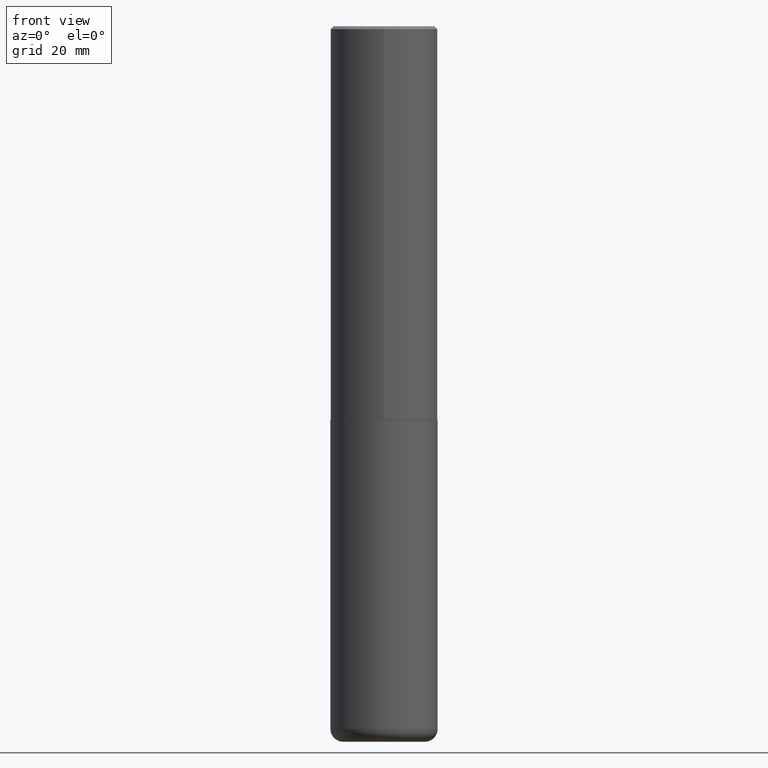
[diagram: clean part render]
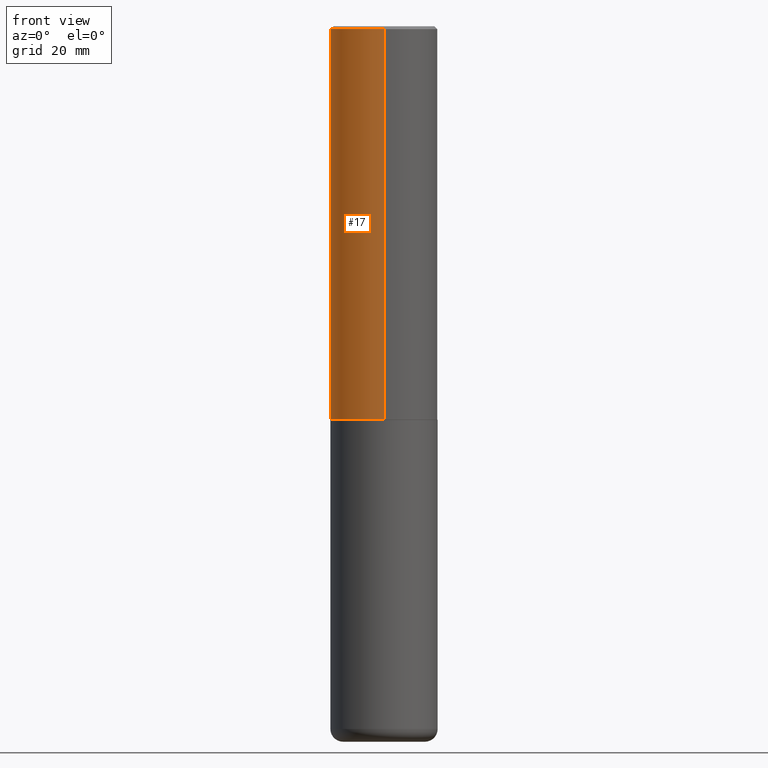
[diagram: same view with one face highlighted and labeled with its STEP entity id]
A machine part, front view. The second image highlights one B-rep face of the part: STEP entity #17.
In plain terms, the highlighted cylindrical surface (partial cylindrical patch) has radius 9.525 mm, axis along (-0, 0, 1).
Its self-contained STEP definition (entity closure, byte-faithful):
#3 = DIRECTION ( 'NONE',  ( -2.446040391741596606E-29, 3.490662795793665557E-15, 1.000000000000000000 ) ) ;
#6 = LINE ( 'NONE', #140, #92 ) ;
#17 = ADVANCED_FACE ( 'NONE', ( #172 ), #190, .T. ) ;
#23 = CARTESIAN_POINT ( 'NONE',  ( 6.724165036897648492E-29, -9.595832025636787455E-15, -2.749000000000000110 ) ) ;
#30 = DIRECTION ( 'NONE',  ( -2.446040391741596606E-29, 3.490662795793665557E-15, 1.000000000000000000 ) ) ;
#34 = CARTESIAN_POINT ( 'NONE',  ( 4.892080783483214581E-31, -6.981325591587361238E-17, -0.02000000000000008715 ) ) ;
#47 = VERTEX_POINT ( 'NONE', #126 ) ;
#53 = EDGE_CURVE ( 'NONE', #277, #247, #154, .T. ) ;
#60 = CARTESIAN_POINT ( 'NONE',  ( 0.000000000000000000, 0.000000000000000000, 0.000000000000000000 ) ) ;
#61 = CARTESIAN_POINT ( 'NONE',  ( 2.664535259100376880E-15, 0.3750000000000002220, -1.308998548422625521E-15 ) ) ;
#64 = VERTEX_POINT ( 'NONE', #251 ) ;
#68 = EDGE_CURVE ( 'NONE', #64, #47, #169, .T. ) ;
#73 = AXIS2_PLACEMENT_3D ( 'NONE', #60, #318, #222 ) ;
#87 = ORIENTED_EDGE ( 'NONE', *, *, #226, .T. ) ;
#92 = VECTOR ( 'NONE', #3, 39.37007874015748143 ) ;
#100 = AXIS2_PLACEMENT_3D ( 'NONE', #34, #160, #285 ) ;
#116 = ORIENTED_EDGE ( 'NONE', *, *, #53, .T. ) ;
#126 = CARTESIAN_POINT ( 'NONE',  ( -2.572686749164323547E-15, -0.3750000000000001110, -0.01999999999999877570 ) ) ;
#140 = CARTESIAN_POINT ( 'NONE',  ( -2.618611004132351594E-15, -0.3750000000000002220, 1.308998548422625521E-15 ) ) ;
#154 = CIRCLE ( 'NONE', #376, 0.3750000000000003886 ) ;
#160 = DIRECTION ( 'NONE',  ( -2.446040391741596606E-29, 3.490662795793665557E-15, 1.000000000000000000 ) ) ;
#169 = CIRCLE ( 'NONE', #100, 0.3750000000000000555 ) ;
#172 = FACE_OUTER_BOUND ( 'NONE', #311, .T. ) ;
#190 = CYLINDRICAL_SURFACE ( 'NONE', #73, 0.3750000000000002220 ) ;
#222 = DIRECTION ( 'NONE',  ( -6.982962677686266711E-15, -1.000000000000000000, 3.490662795793665951E-15 ) ) ;
#225 = DIRECTION ( 'NONE',  ( -6.982962677686265922E-15, -1.000000000000000000, 2.913971193241877611E-15 ) ) ;
#226 = EDGE_CURVE ( 'NONE', #247, #47, #6, .T. ) ;
#247 = VERTEX_POINT ( 'NONE', #374 ) ;
#249 = ORIENTED_EDGE ( 'NONE', *, *, #68, .F. ) ;
#251 = CARTESIAN_POINT ( 'NONE',  ( 2.618611004132350411E-15, 0.3749999999999999445, -0.02000000000000139513 ) ) ;
#277 = VERTEX_POINT ( 'NONE', #356 ) ;
#285 = DIRECTION ( 'NONE',  ( -6.982962677686265922E-15, -1.000000000000000000, 3.494488891895536035E-15 ) ) ;
#298 = EDGE_CURVE ( 'NONE', #277, #64, #384, .T. ) ;
#311 = EDGE_LOOP ( 'NONE', ( #370, #116, #87, #249 ) ) ;
#314 = VECTOR ( 'NONE', #30, 39.37007874015748143 ) ;
#318 = DIRECTION ( 'NONE',  ( -2.446040391741596606E-29, 3.490662795793665557E-15, 1.000000000000000000 ) ) ;
#322 = DIRECTION ( 'NONE',  ( -2.446040391741596606E-29, 3.490662795793665557E-15, 1.000000000000000000 ) ) ;
#356 = CARTESIAN_POINT ( 'NONE',  ( 2.664535259100411196E-15, 0.3749999999999907296, -2.749000000000000998 ) ) ;
#370 = ORIENTED_EDGE ( 'NONE', *, *, #298, .F. ) ;
#374 = CARTESIAN_POINT ( 'NONE',  ( -2.618611004132284935E-15, -0.3750000000000099920, -2.748999999999999222 ) ) ;
#376 = AXIS2_PLACEMENT_3D ( 'NONE', #23, #322, #225 ) ;
#384 = LINE ( 'NONE', #61, #314 ) ;